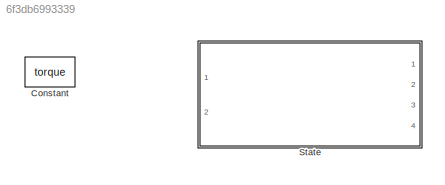
MODEL slx_6f3db6993339
KIND model
CONFIG AbsTol = auto
CONFIG EnableMultiTasking = off
CONFIG FixedStep = Ts
CONFIG MaxStep = auto
CONFIG MinStep = auto
CONFIG RelTol = 1e-3
CONFIG SampleTimeConstraint = Unconstrained
CONFIG Solver = FixedStepDiscrete
CONFIG SolverName = FixedStepDiscrete
CONFIG StartTime = 0.0
CONFIG StopTime = T_final
BLOCK [Constant] Constant
  Value = torque
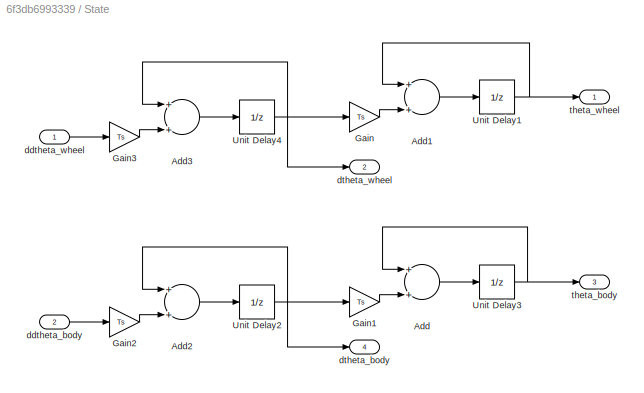
BLOCK [SubSystem] State
  Ports = [2, 4]
  RequestExecContextInheritance = off
BLOCK [Sum] State/Add
  InputSameDT = off
  OutDataTypeStr = Inherit: Inherit via internal rule
  Ports = [2, 1]
  SaturateOnIntegerOverflow = off
BLOCK [Sum] State/Add1
  InputSameDT = off
  OutDataTypeStr = Inherit: Inherit via internal rule
  Ports = [2, 1]
  SaturateOnIntegerOverflow = off
BLOCK [Sum] State/Add2
  InputSameDT = off
  OutDataTypeStr = Inherit: Inherit via internal rule
  Ports = [2, 1]
  SaturateOnIntegerOverflow = off
BLOCK [Sum] State/Add3
  InputSameDT = off
  OutDataTypeStr = Inherit: Inherit via internal rule
  Ports = [2, 1]
  SaturateOnIntegerOverflow = off
BLOCK [Gain] State/Gain
  Gain = Ts
  OutDataTypeStr = Inherit: Inherit via internal rule
  ParamDataTypeStr = Inherit: Inherit via internal rule
  SaturateOnIntegerOverflow = off
BLOCK [Gain] State/Gain1
  Gain = Ts
  OutDataTypeStr = Inherit: Inherit via internal rule
  ParamDataTypeStr = Inherit: Inherit via internal rule
  SaturateOnIntegerOverflow = off
BLOCK [Gain] State/Gain2
  Gain = Ts
  OutDataTypeStr = Inherit: Inherit via internal rule
  ParamDataTypeStr = Inherit: Inherit via internal rule
  SaturateOnIntegerOverflow = off
BLOCK [Gain] State/Gain3
  Gain = Ts
  OutDataTypeStr = Inherit: Inherit via internal rule
  ParamDataTypeStr = Inherit: Inherit via internal rule
  SaturateOnIntegerOverflow = off
BLOCK [UnitDelay] State/Unit Delay1
  InitialCondition = theta_wheel_init
  InputProcessing = Elements as channels (sample based)
  SampleTime = -1
BLOCK [UnitDelay] State/Unit Delay2
  InitialCondition = dtheta_body_init
  InputProcessing = Elements as channels (sample based)
  SampleTime = -1
BLOCK [UnitDelay] State/Unit Delay3
  InitialCondition = theta_body_init
  InputProcessing = Elements as channels (sample based)
  SampleTime = -1
BLOCK [UnitDelay] State/Unit Delay4
  InitialCondition = dtheta_body_init
  InputProcessing = Elements as channels (sample based)
  SampleTime = -1
BLOCK [Inport] State/ddtheta_body
  IconDisplay = Port number
  Port = 2
BLOCK [Inport] State/ddtheta_wheel
  IconDisplay = Port number
BLOCK [Outport] State/dtheta_body
  IconDisplay = Port number
  Port = 4
BLOCK [Outport] State/dtheta_wheel
  IconDisplay = Port number
  Port = 2
BLOCK [Outport] State/theta_body
  IconDisplay = Port number
  Port = 3
BLOCK [Outport] State/theta_wheel
  IconDisplay = Port number
LINE State/Add1:1 -> State/Unit Delay1:1
LINE State/Add2:1 -> State/Unit Delay2:1
LINE State/Add3:1 -> State/Unit Delay4:1
LINE State/Add:1 -> State/Unit Delay3:1
LINE State/Gain1:1 -> State/Add:2
LINE State/Gain2:1 -> State/Add2:2
LINE State/Gain3:1 -> State/Add3:2
LINE State/Gain:1 -> State/Add1:2
NET State/Unit Delay1:1 -> State/Add1:1, State/theta_wheel:1
NET State/Unit Delay2:1 -> State/Add2:1, State/Gain1:1, State/dtheta_body:1
NET State/Unit Delay3:1 -> State/Add:1, State/theta_body:1
NET State/Unit Delay4:1 -> State/Add3:1, State/Gain:1, State/dtheta_wheel:1
LINE State/ddtheta_body:1 -> State/Gain2:1
LINE State/ddtheta_wheel:1 -> State/Gain3:1
note: NET lines group one-source signal fan-out (src -> all destinations, sorted); 1:1 wires keep LINE
